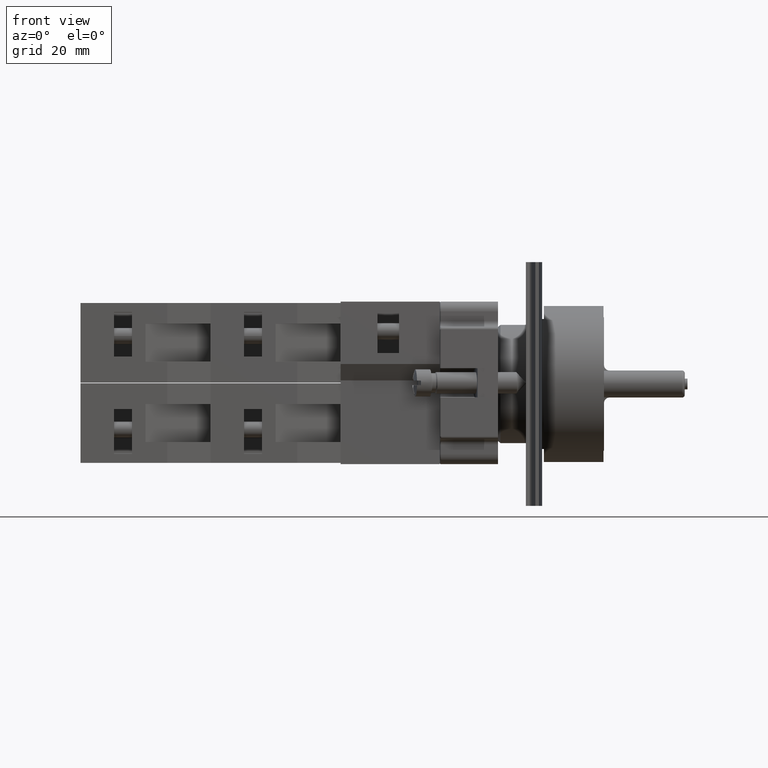
[diagram: clean part render]
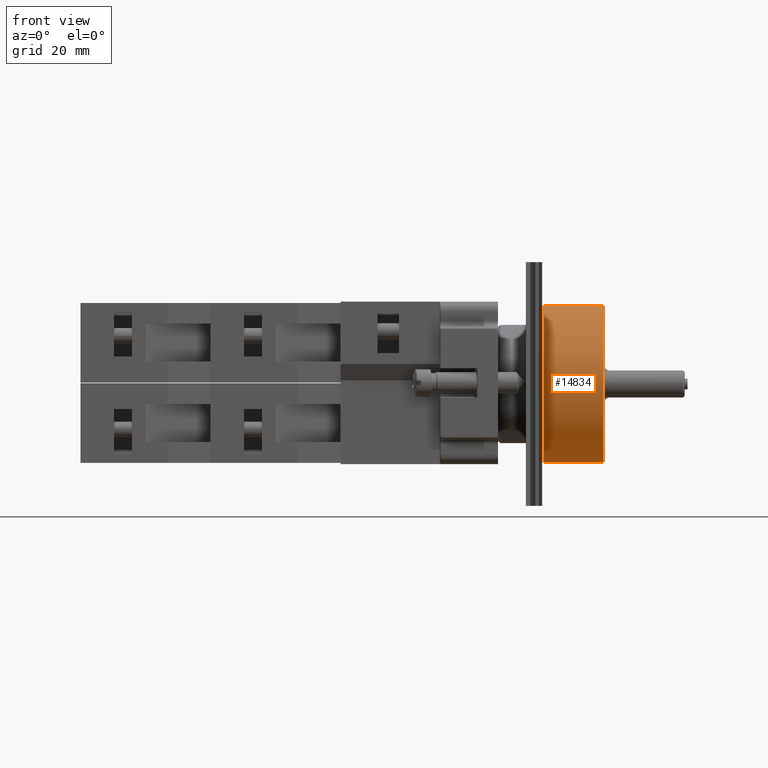
[diagram: same view with one face highlighted and labeled with its STEP entity id]
A machine part, front view. The second image highlights one B-rep face of the part: STEP entity #14834.
In plain terms, the highlighted cylindrical surface (bore or boss wall) has radius 14.5 mm, axis along (1, 0, -0).
Its self-contained STEP definition (entity closure, byte-faithful):
#14800=CARTESIAN_POINT('',(-8.120740052161070,14.423116139419633,0.0));
#14801=VERTEX_POINT('',#14800);
#14802=CARTESIAN_POINT('',(-8.120740052161070,-0.076883860580367,0.0));
#14803=DIRECTION('',(1.0,0.0,0.0));
#14804=DIRECTION('',(0.0,1.0,0.0));
#14805=AXIS2_PLACEMENT_3D('',#14802,#14803,#14804);
#14806=CIRCLE('',#14805,14.500000000000002);
#14807=EDGE_CURVE('',#14801,#14801,#14806,.T.);
#14815=CARTESIAN_POINT('',(-2.620740052161069,-0.076883860580367,0.0));
#14816=DIRECTION('',(1.0,4.693247E-018,0.0));
#14817=DIRECTION('',(0.0,1.0,0.0));
#14818=AXIS2_PLACEMENT_3D('',#14815,#14816,#14817);
#14819=CYLINDRICAL_SURFACE('',#14818,14.500000000000004);
#14820=CARTESIAN_POINT('',(2.879259947838931,14.423116139419637,0.0));
#14821=VERTEX_POINT('',#14820);
#14822=CARTESIAN_POINT('',(2.879259947838931,-0.076883860580367,0.0));
#14823=DIRECTION('',(1.0,0.0,0.0));
#14824=DIRECTION('',(0.0,1.0,0.0));
#14825=AXIS2_PLACEMENT_3D('',#14822,#14823,#14824);
#14826=CIRCLE('',#14825,14.500000000000004);
#14827=EDGE_CURVE('',#14821,#14821,#14826,.T.);
#14828=ORIENTED_EDGE('',*,*,#14827,.F.);
#14829=EDGE_LOOP('',(#14828));
#14830=FACE_OUTER_BOUND('',#14829,.T.);
#14831=ORIENTED_EDGE('',*,*,#14807,.T.);
#14832=EDGE_LOOP('',(#14831));
#14833=FACE_BOUND('',#14832,.T.);
#14834=ADVANCED_FACE('',(#14830,#14833),#14819,.T.);